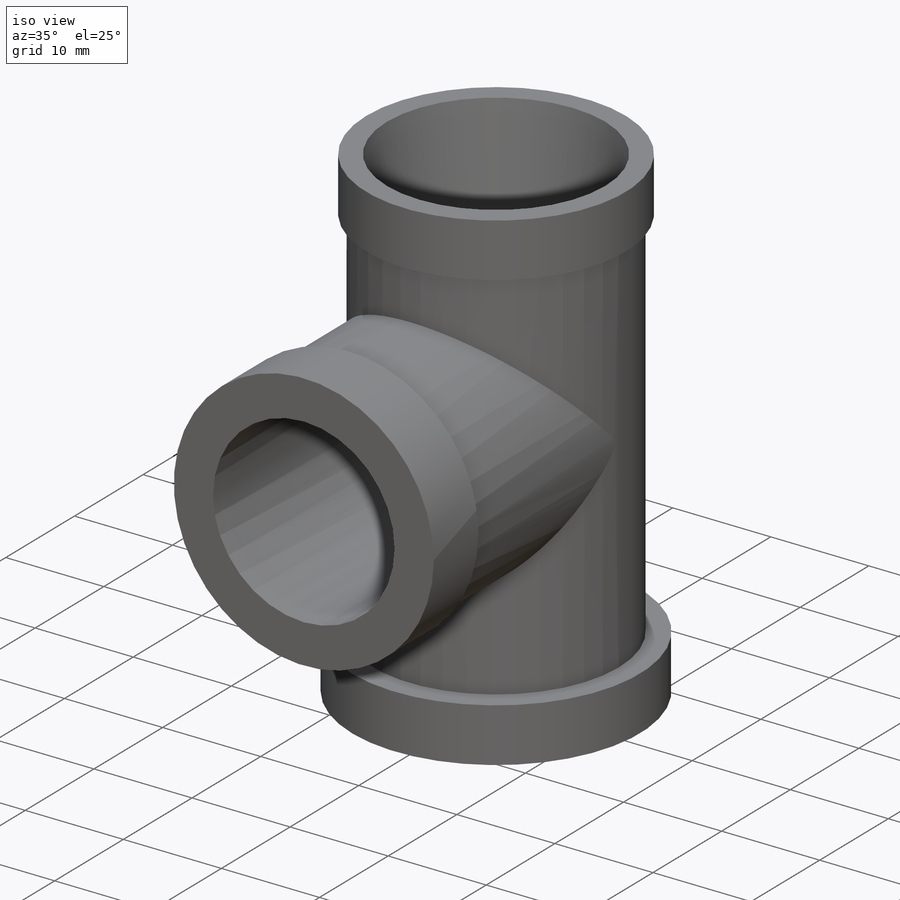
[diagram: iso view]
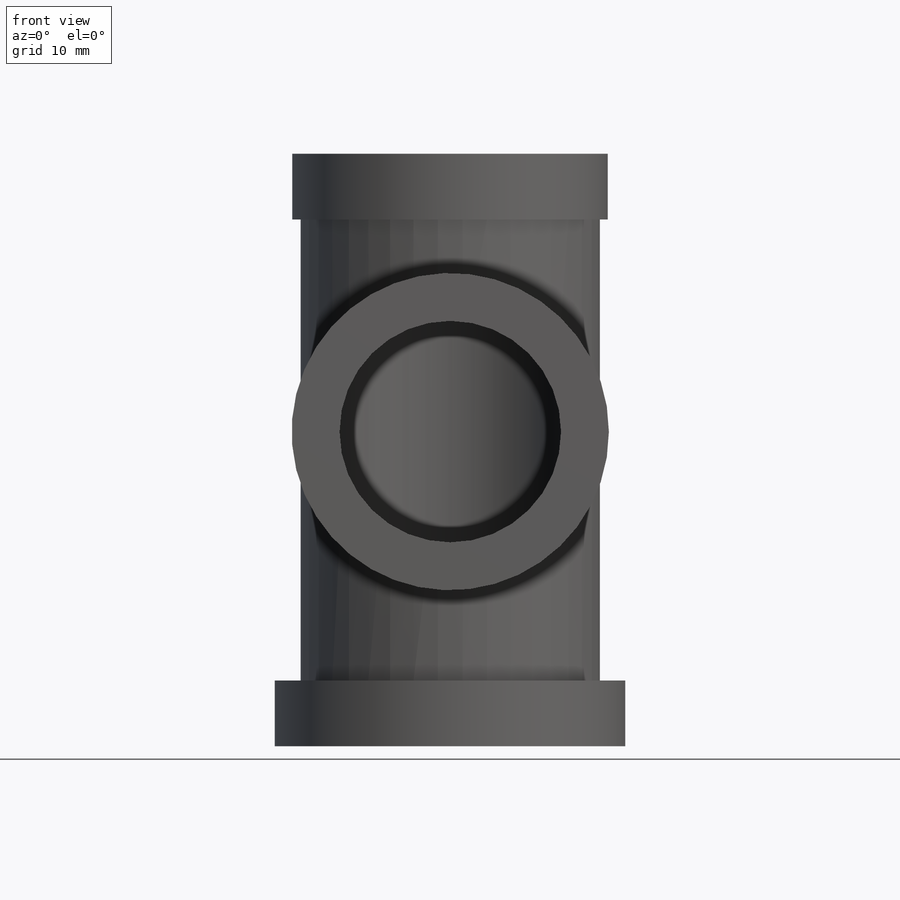
[diagram: front view]
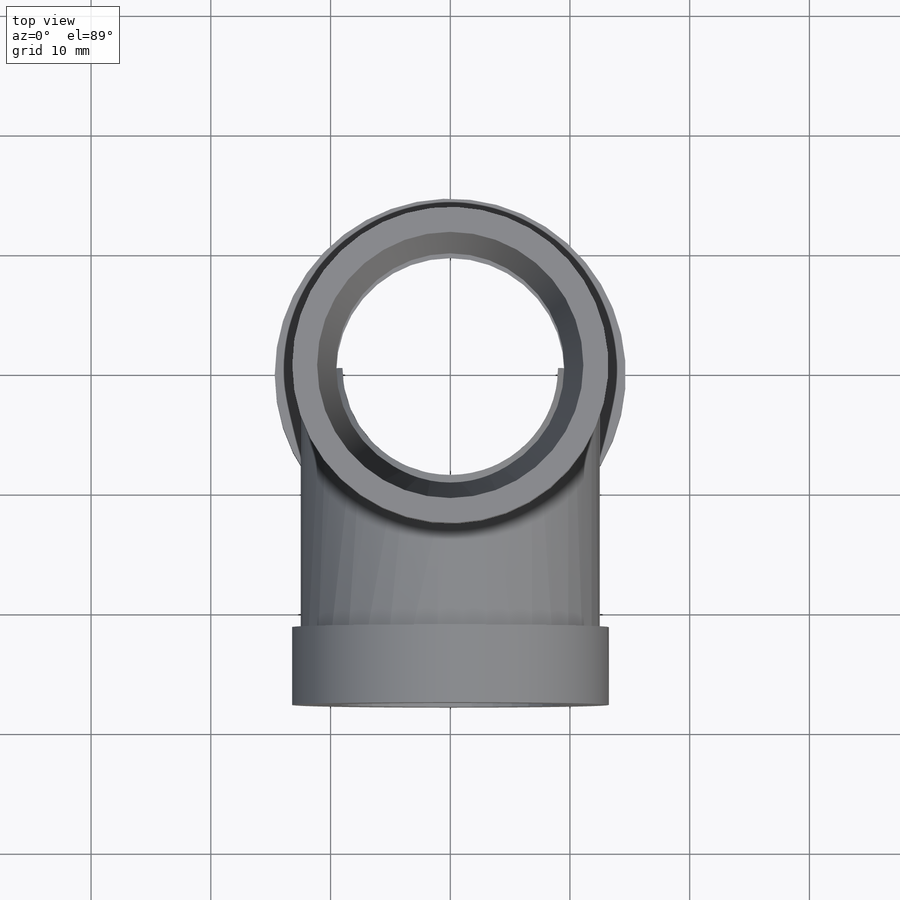
[diagram: top view]
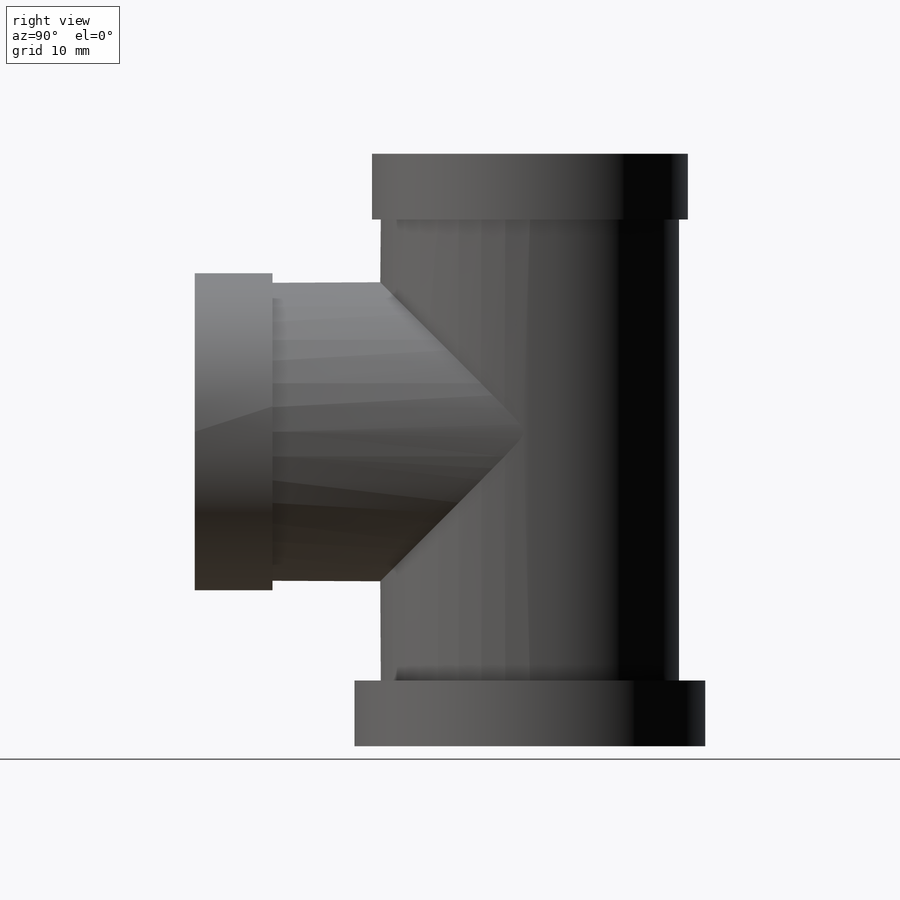
[diagram: right view]
SOLIDWORKS PART (.sldprt)
format: sldprt  version: not decoded by parser v0  size: 222,208 bytes
history: native  units: mm
features: sketch x5, plane x3, extrude x2, cut_extrude x2, material x1, revolve x1 (+10 scaffold rows collapsed)
feature tree (24):
  scaffold x10  (default folders/planes/origin — collapsed)
  material  "Material <sin especificar>"
  plane  "Alzado"
  plane  "Planta"
  plane  "Vista lateral"
  sketch  "Croquis1"  dims[D1=13.2mm D2=5.5mm D3=12.5mm D4=5.5mm D5=11.12mm D6=9.525mm D7=49.5mm]
  revolve  "Revolución1"  Angle=360deg
  sketch  "Croquis2"
  extrude  "Saliente-Extruir1"  Depth=28mm
  sketch  "Croquis3"
  cut_extrude  "Cortar-Extruir1"  Depth=28mm
  sketch  "Croquis4"  dims[D1=26.5mm]
  extrude  "Saliente-Extruir2"  Depth=6.5mm
  sketch  "Croquis5"  dims[D1=18.5mm]
  cut_extrude  "Cortar-Extruir2"  [1 undecoded]
decode coverage: 7 of 10 modeling features carry decoded parameters
note: 1 parameter value undecoded
note: suppression state not decoded; provenance and decode notes live in map.json
